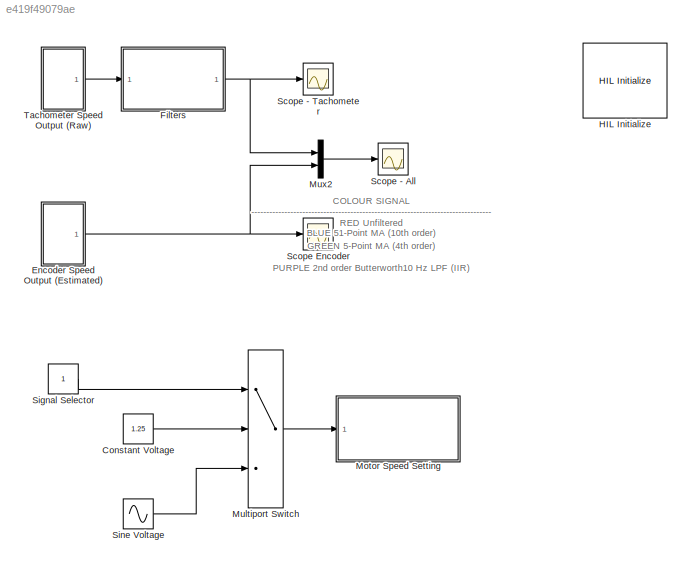
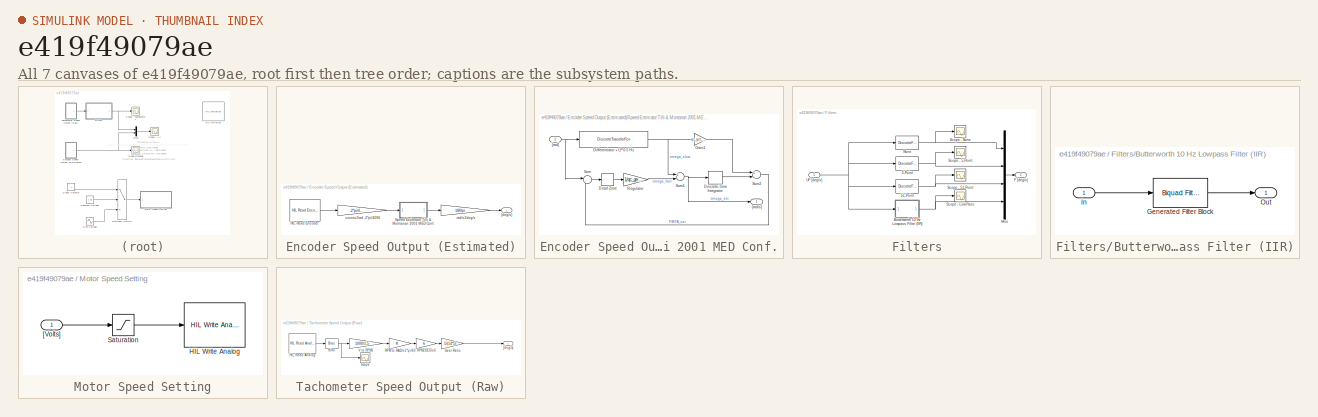
[diagram: thumbnail index - all 7 canvases of the model, root first then tree order]
MODEL slx_e419f49079ae
KIND model
CONFIG AbsTol = auto
CONFIG FixedStep = 0.005
CONFIG MaxStep = auto
CONFIG MinStep = auto
CONFIG RelTol = 1e-3
CONFIG SampleTimeConstraint = Unconstrained
CONFIG Solver = FixedStepDiscrete
CONFIG SolverMode = Auto
CONFIG SolverName = FixedStepDiscrete
CONFIG StartTime = 0.0
CONFIG StopTime = inf
BLOCK [Constant] Constant Voltage
  Value = 1.25
BLOCK [SubSystem] Encoder Speed Output (Estimated)
  Ports = [0, 1]
  RequestExecContextInheritance = off
  Variant = off
BLOCK [Reference] Encoder Speed Output (Estimated)/HIL Read Encoder  REF=quarc_library/Data Acquisition/Generic/Immediate I//O/HIL Read Encoder
  AttributesFormatString = (%<object_name>)
  Ports = [0, 1]
  SourceBlock = quarc_library/Data Acquisition/Generic/Immediate I//O/HIL Read Encoder
  SourceType = HIL Read Encoder
  UserDataPersistent = on
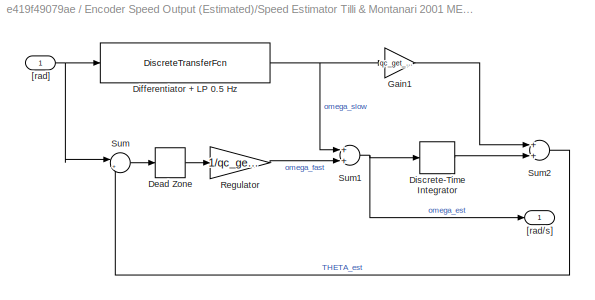
BLOCK [SubSystem] Encoder Speed Output (Estimated)/Speed Estimator Tilli & Montanari 2001 MED Conf.
  Ports = [1, 1]
  RequestExecContextInheritance = off
  Variant = off
BLOCK [DeadZone] Encoder Speed Output (Estimated)/Speed Estimator Tilli & Montanari 2001 MED Conf./Dead Zone
  LowerValue = -2*pi/4096
  UpperValue = 2*pi/4096
BLOCK [DiscreteTransferFcn] Encoder Speed Output (Estimated)/Speed Estimator Tilli & Montanari 2001 MED Conf./Differentiator + LP 0.5 Hz
  Denominator = [(400*qc_get_step_size+qc_get_step_size/2) (400*qc_get_step_size-qc_get_step_size/2)]
  InputPortMap = u0
  Numerator = [1 -1]
  Ports = [1, 1]
BLOCK [DiscreteIntegrator] Encoder Speed Output (Estimated)/Speed Estimator Tilli & Montanari 2001 MED Conf./Discrete-Time Integrator
  ICPrevOutput = DiscIntNeverNeededParam
  ICPrevScaledInput = DiscIntNeverNeededParam
  Ports = [1, 1]
  SampleTime = -1
BLOCK [Gain] Encoder Speed Output (Estimated)/Speed Estimator Tilli & Montanari 2001 MED Conf./Gain1
  Gain = qc_get_step_size/2
  OutDataTypeStr = Inherit: Inherit via internal rule
  ParamDataTypeStr = Inherit: Inherit via internal rule
  SaturateOnIntegerOverflow = off
BLOCK [Gain] Encoder Speed Output (Estimated)/Speed Estimator Tilli & Montanari 2001 MED Conf./Regulator
  Gain = 1/qc_get_step_size/40*2*pi
  OutDataTypeStr = Inherit: Inherit via internal rule
  ParamDataTypeStr = Inherit: Inherit via internal rule
  SaturateOnIntegerOverflow = off
BLOCK [Sum] Encoder Speed Output (Estimated)/Speed Estimator Tilli & Montanari 2001 MED Conf./Sum
  IconShape = round
  InputSameDT = off
  Inputs = |+-
  OutDataTypeStr = Inherit: Inherit via internal rule
  Ports = [2, 1]
  SaturateOnIntegerOverflow = off
BLOCK [Sum] Encoder Speed Output (Estimated)/Speed Estimator Tilli & Montanari 2001 MED Conf./Sum1
  InputSameDT = off
  OutDataTypeStr = Inherit: Inherit via internal rule
  Ports = [2, 1]
  SaturateOnIntegerOverflow = off
BLOCK [Sum] Encoder Speed Output (Estimated)/Speed Estimator Tilli & Montanari 2001 MED Conf./Sum2
  InputSameDT = off
  OutDataTypeStr = Inherit: Inherit via internal rule
  Ports = [2, 1]
  SaturateOnIntegerOverflow = off
BLOCK [Outport] Encoder Speed Output (Estimated)/Speed Estimator Tilli & Montanari 2001 MED Conf./[rad//s]
  IconDisplay = Port number
BLOCK [Inport] Encoder Speed Output (Estimated)/Speed Estimator Tilli & Montanari 2001 MED Conf./[rad]
  IconDisplay = Port number
BLOCK [Outport] Encoder Speed Output (Estimated)/[deg//s]
  IconDisplay = Port number
BLOCK [Gain] Encoder Speed Output (Estimated)/counts2rad -2*pi//4096
  Gain = -2*pi/4096
  OutDataTypeStr = Inherit: Inherit via internal rule
  ParamDataTypeStr = Inherit: Inherit via internal rule
  SaturateOnIntegerOverflow = off
BLOCK [Gain] Encoder Speed Output (Estimated)/rad//s2deg//s
  Gain = 180/pi
  OutDataTypeStr = Inherit: Inherit via internal rule
  ParamDataTypeStr = Inherit: Inherit via internal rule
  SaturateOnIntegerOverflow = off
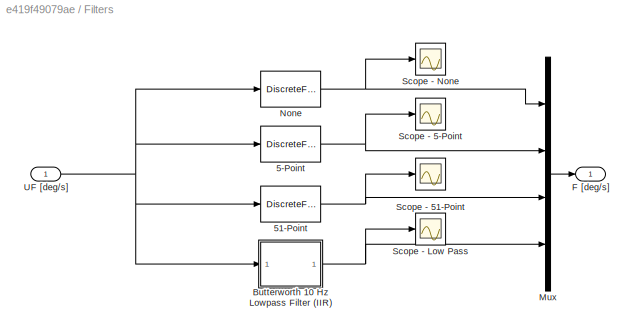
BLOCK [SubSystem] Filters
  Ports = [1, 1]
  RequestExecContextInheritance = off
  Variant = off
BLOCK [DiscreteFilter] Filters/5-Point
  Denominator = [1]
  InputPortMap = u0
  Numerator = 1/5*ones(1,5,'double')
  Ports = [1, 1]
BLOCK [DiscreteFilter] Filters/51-Point
  Denominator = [1]
  InputPortMap = u0
  Numerator = 1/51*ones(1,51,'double')
  Ports = [1, 1]
BLOCK [SubSystem] Filters/Butterworth 10 Hz Lowpass Filter (IIR)
  CopyFcn = fdesignblkfcn(gcbh, {'CopyFcn'});
  DialogController = fdesignblkfcn
  InitFcn = fdesignblkfcn(gcbh, {'InitFcn'});
  Ports = [1, 1]
  RequestExecContextInheritance = off
  UserDataPersistent = on
  Variant = off
BLOCK [Reference] Filters/Butterworth 10 Hz Lowpass Filter (IIR)/Generated Filter Block  REF=dsparch4/Biquad Filter
  Ports = [1, 1]
  SourceBlock = dsparch4/Biquad Filter
  SourceType = Biquad Filter
  Tag = BlockMethodSubSystem
  UserDataPersistent = on
BLOCK [Inport] Filters/Butterworth 10 Hz Lowpass Filter (IIR)/In
  IconDisplay = Port number
BLOCK [Outport] Filters/Butterworth 10 Hz Lowpass Filter (IIR)/Out
  IconDisplay = Port number
BLOCK [Outport] Filters/F [deg//s]
  IconDisplay = Port number
BLOCK [Mux] Filters/Mux
  DisplayOption = bar
  Ports = [4, 1]
BLOCK [DiscreteFilter] Filters/None
  Denominator = [1]
  InputPortMap = u0
  Ports = [1, 1]
BLOCK [Scope] Filters/Scope - 5-Point
  Ports = [1]
  ScopeSpecificationString = C++SS(StrPVP('Location','[188, 390, 512, 629]'),StrPVP('Open','off'),MxPVP('AxesTitles',24,'struct(''axes1'',''%<SignalLabel>'')'),MxPVP('ScopeGraphics',28,'struct(''FigureColor'',''[0.5 0.5 0.5]'',''AxesColor'',''[0 0 0]'',''AxesTickColor'',''[1 1 1]'',''LineColors'',''[1 1 0;1 0 1;0 1 1;1 0 0;0 1 0;0 0 1]'',''LineStyles'',''-|-|-|-|-|-'',''LineWidths'',''[0.5 0.5 0.5 0.5 0.5 0.5]'',''MarkerStyle...<+313ch>
BLOCK [Scope] Filters/Scope - 51-Point
  Ports = [1]
  ScopeSpecificationString = C++SS(StrPVP('Location','[188, 390, 727, 726]'),StrPVP('Open','off'),MxPVP('AxesTitles',24,'struct(''axes1'',''%<SignalLabel>'')'),MxPVP('ScopeGraphics',28,'struct(''FigureColor'',''[0.5 0.5 0.5]'',''AxesColor'',''[0 0 0]'',''AxesTickColor'',''[1 1 1]'',''LineColors'',''[1 1 0;1 0 1;0 1 1;1 0 0;0 1 0;0 0 1]'',''LineStyles'',''-|-|-|-|-|-'',''LineWidths'',''[0.5 0.5 0.5 0.5 0.5 0.5]'',''MarkerStyle...<+318ch>
BLOCK [Scope] Filters/Scope - Low Pass
  Ports = [1]
  ScopeSpecificationString = C++SS(StrPVP('Location','[188, 390, 512, 629]'),StrPVP('Open','off'),MxPVP('AxesTitles',24,'struct(''axes1'',''%<SignalLabel>'')'),MxPVP('ScopeGraphics',28,'struct(''FigureColor'',''[0.5 0.5 0.5]'',''AxesColor'',''[0 0 0]'',''AxesTickColor'',''[1 1 1]'',''LineColors'',''[1 1 0;1 0 1;0 1 1;1 0 0;0 1 0;0 0 1]'',''LineStyles'',''-|-|-|-|-|-'',''LineWidths'',''[0.5 0.5 0.5 0.5 0.5 0.5]'',''MarkerStyle...<+315ch>
BLOCK [Scope] Filters/Scope - None
  Ports = [1]
  ScopeSpecificationString = C++SS(StrPVP('Location','[188, 390, 512, 629]'),StrPVP('Open','off'),MxPVP('AxesTitles',24,'struct(''axes1'',''%<SignalLabel>'')'),StrPVP('ShowLegends','off'),StrPVP('YMin','93'),StrPVP('YMax','98.5'),StrPVP('SaveName','ScopeData2'),StrPVP('DataFormat','StructureWithTime'),StrPVP('BlockParamSampleTime','0'),StrPVP('LimitDataPoints','on'),StrPVP('Decimation','1'),StrPVP('BlockParamSampleInput','off...<+3ch>
BLOCK [Inport] Filters/UF [deg//s]
  IconDisplay = Port number
BLOCK [Reference] HIL Initialize  REF=quarc_library/Data Acquisition/Generic/Configuration/HIL Initialize
  AttributesFormatString = %<object_name> (%<board_type>-%<board_number>)
  Ports = []
  SourceBlock = quarc_library/Data Acquisition/Generic/Configuration/HIL Initialize
  SourceType = HIL Initialize
  UserDataPersistent = on
BLOCK [SubSystem] Motor Speed Setting
  Ports = [1]
  RequestExecContextInheritance = off
  Variant = off
BLOCK [Reference] Motor Speed Setting/HIL Write Analog  REF=quarc_library/Data Acquisition/Generic/Immediate I//O/HIL Write Analog
  AttributesFormatString = (%<object_name>)
  Ports = [1]
  SourceBlock = quarc_library/Data Acquisition/Generic/Immediate I//O/HIL Write Analog
  SourceType = HIL Write Analog
  UserDataPersistent = on
BLOCK [Saturate] Motor Speed Setting/Saturation
  InputPortMap = u0
  LowerLimit = -3
  Ports = [1, 1]
  UpperLimit = 3
BLOCK [Inport] Motor Speed Setting/[Volts]
  IconDisplay = Port number
BLOCK [MultiPortSwitch] Multiport Switch
  InputSameDT = off
  Inputs = 2
  Ports = [3, 1]
  SaturateOnIntegerOverflow = off
BLOCK [Mux] Mux2
  DisplayOption = bar
  Inputs = 2
  Ports = [2, 1]
BLOCK [Scope] Scope - All 
  Ports = [1]
  ScopeSpecificationString = Simulink.scopes.TimeScopeBlockCfg('CurrentConfiguration', extmgr.ConfigurationSet(extmgr.Configuration('Core','General UI',true,'FigureColor',[1 1 1]),extmgr.Configuration('Core','Source UI',true),extmgr.Configuration('Sources','WiredSimulink',true,'DataLoggingVariableName','ScopeData1','DataLoggingSaveFormat','StructureWithTime','DataLoggingDecimation','1','DataLoggingDecimateData',true),extmgr.C...<+2302ch>
BLOCK [Scope] Scope - Tachometer
  Ports = [1]
  ScopeSpecificationString = Simulink.scopes.TimeScopeBlockCfg('CurrentConfiguration', extmgr.ConfigurationSet(extmgr.Configuration('Core','General UI',true,'FigureColor',[1 1 1]),extmgr.Configuration('Core','Source UI',true),extmgr.Configuration('Sources','WiredSimulink',true,'DataLoggingSaveFormat','StructureWithTime','DataLoggingDecimation','1','DataLoggingDecimateData',true),extmgr.Configuration('Visuals','Time Domain',tr...<+2273ch>
BLOCK [Scope] Scope Encoder
  Ports = [1]
  ScopeSpecificationString = Simulink.scopes.TimeScopeBlockCfg('CurrentConfiguration', extmgr.ConfigurationSet(extmgr.Configuration('Core','General UI',true,'FigureColor',[1 1 1]),extmgr.Configuration('Core','Source UI',true),extmgr.Configuration('Sources','WiredSimulink',true,'DataLoggingVariableName','ScopeData5','DataLoggingSaveFormat','StructureWithTime','DataLoggingDecimation','1','DataLoggingDecimateData',true),extmgr.C...<+2593ch>
BLOCK [Constant] Signal Selector
BLOCK [Sin] Sine Voltage
  Amplitude = .25
  Bias = 1
  Frequency = 2*pi
  Ports = [0, 1]
  SampleTime = qc_get_step_size
BLOCK [SubSystem] Tachometer Speed Output (Raw)
  Ports = [0, 1]
  RequestExecContextInheritance = off
  Variant = off
BLOCK [Bias] Tachometer Speed Output (Raw)/Bias
  SaturateOnIntegerOverflow = off
BLOCK [Gain] Tachometer Speed Output (Raw)/Gear Ratio
  Gain = 1/(14*5)
  OutDataTypeStr = Inherit: Inherit via internal rule
  ParamDataTypeStr = Inherit: Inherit via internal rule
  SaturateOnIntegerOverflow = off
BLOCK [Reference] Tachometer Speed Output (Raw)/HIL Read Analog  REF=quarc_library/Data Acquisition/Generic/Immediate I//O/HIL Read Analog
  AttributesFormatString = (%<object_name>)
  Ports = [0, 1]
  SourceBlock = quarc_library/Data Acquisition/Generic/Immediate I//O/HIL Read Analog
  SourceType = HIL Read Analog
  UserDataPersistent = on
BLOCK [Gain] Tachometer Speed Output (Raw)/RPM to RAD//s 2*pi//60
  OutDataTypeStr = Inherit: Inherit via internal rule
  ParamDataTypeStr = Inherit: Inherit via internal rule
  SaturateOnIntegerOverflow = off
BLOCK [Gain] Tachometer Speed Output (Raw)/RPM2DEG//s 6
  Gain = 6
  OutDataTypeStr = Inherit: Inherit via internal rule
  ParamDataTypeStr = Inherit: Inherit via internal rule
  SaturateOnIntegerOverflow = off
BLOCK [Scope] Tachometer Speed Output (Raw)/Scope
  Ports = [1]
  ScopeSpecificationString = C++SS(StrPVP('Location','[188, 390, 512, 629]'),StrPVP('Open','off'),MxPVP('AxesTitles',24,'struct(''axes1'',''%<SignalLabel>'')'),MxPVP('ScopeGraphics',28,'struct(''FigureColor'',''[0.5 0.5 0.5]'',''AxesColor'',''[0 0 0]'',''AxesTickColor'',''[1 1 1]'',''LineColors'',''[1 1 0;1 0 1;0 1 1;1 0 0;0 1 0;0 0 1]'',''LineStyles'',''-|-|-|-|-|-'',''LineWidths'',''[0.5 0.5 0.5 0.5 0.5 0.5]'',''MarkerStyle...<+391ch>
BLOCK [Gain] Tachometer Speed Output (Raw)/V to RPM1
  Gain = 1000/1.5
  OutDataTypeStr = Inherit: Inherit via internal rule
  ParamDataTypeStr = Inherit: Inherit via internal rule
  SaturateOnIntegerOverflow = off
BLOCK [Outport] Tachometer Speed Output (Raw)/[deg//s]
  IconDisplay = Port number
ANNOTATION (root): COLOUR SIGNAL -------------------------------------------------------------------------------- RED Unfiltered GREEN 5-Point MA (4th order) BLUE 51-Point MA (10th order) PURPLE 2nd order Butterworth10 Hz LPF (IIR) ORANGE Encoder Estimated
LINE Constant Voltage:1 -> Multiport Switch:2
LINE Encoder Speed Output (Estimated)/HIL Read Encoder:1 -> Encoder Speed Output (Estimated)/counts2rad -2*pi//4096:1
LINE Encoder Speed Output (Estimated)/Speed Estimator Tilli & Montanari 2001 MED Conf./Dead Zone:1 -> Encoder Speed Output (Estimated)/Speed Estimator Tilli & Montanari 2001 MED Conf./Regulator:1
NET Encoder Speed Output (Estimated)/Speed Estimator Tilli & Montanari 2001 MED Conf./Differentiator + LP 0.5 Hz:1 -> Encoder Speed Output (Estimated)/Speed Estimator Tilli & Montanari 2001 MED Conf./Gain1:1, Encoder Speed Output (Estimated)/Speed Estimator Tilli & Montanari 2001 MED Conf./Sum1:1
LINE Encoder Speed Output (Estimated)/Speed Estimator Tilli & Montanari 2001 MED Conf./Discrete-Time Integrator:1 -> Encoder Speed Output (Estimated)/Speed Estimator Tilli & Montanari 2001 MED Conf./Sum2:2
LINE Encoder Speed Output (Estimated)/Speed Estimator Tilli & Montanari 2001 MED Conf./Gain1:1 -> Encoder Speed Output (Estimated)/Speed Estimator Tilli & Montanari 2001 MED Conf./Sum2:1
LINE Encoder Speed Output (Estimated)/Speed Estimator Tilli & Montanari 2001 MED Conf./Regulator:1 -> Encoder Speed Output (Estimated)/Speed Estimator Tilli & Montanari 2001 MED Conf./Sum1:2
NET Encoder Speed Output (Estimated)/Speed Estimator Tilli & Montanari 2001 MED Conf./Sum1:1 -> Encoder Speed Output (Estimated)/Speed Estimator Tilli & Montanari 2001 MED Conf./Discrete-Time Integrator:1, Encoder Speed Output (Estimated)/Speed Estimator Tilli & Montanari 2001 MED Conf./[rad//s]:1
LINE Encoder Speed Output (Estimated)/Speed Estimator Tilli & Montanari 2001 MED Conf./Sum2:1 -> Encoder Speed Output (Estimated)/Speed Estimator Tilli & Montanari 2001 MED Conf./Sum:2
LINE Encoder Speed Output (Estimated)/Speed Estimator Tilli & Montanari 2001 MED Conf./Sum:1 -> Encoder Speed Output (Estimated)/Speed Estimator Tilli & Montanari 2001 MED Conf./Dead Zone:1
NET Encoder Speed Output (Estimated)/Speed Estimator Tilli & Montanari 2001 MED Conf./[rad]:1 -> Encoder Speed Output (Estimated)/Speed Estimator Tilli & Montanari 2001 MED Conf./Differentiator + LP 0.5 Hz:1, Encoder Speed Output (Estimated)/Speed Estimator Tilli & Montanari 2001 MED Conf./Sum:1
LINE Encoder Speed Output (Estimated)/Speed Estimator Tilli & Montanari 2001 MED Conf.:1 -> Encoder Speed Output (Estimated)/rad//s2deg//s:1
LINE Encoder Speed Output (Estimated)/counts2rad -2*pi//4096:1 -> Encoder Speed Output (Estimated)/Speed Estimator Tilli & Montanari 2001 MED Conf.:1
LINE Encoder Speed Output (Estimated)/rad//s2deg//s:1 -> Encoder Speed Output (Estimated)/[deg//s]:1
NET Encoder Speed Output (Estimated):1 -> Mux2:2, Scope Encoder:1
NET Filters/5-Point:1 -> Filters/Mux:2, Filters/Scope - 5-Point:1
NET Filters/51-Point:1 -> Filters/Mux:3, Filters/Scope - 51-Point:1
NET Filters/Butterworth 10 Hz Lowpass Filter (IIR):1 -> Filters/Mux:4, Filters/Scope - Low Pass:1
LINE Filters/Mux:1 -> Filters/F [deg//s]:1
NET Filters/None:1 -> Filters/Mux:1, Filters/Scope - None:1
NET Filters/UF [deg//s]:1 -> Filters/5-Point:1, Filters/51-Point:1, Filters/Butterworth 10 Hz Lowpass Filter (IIR):1, Filters/None:1
NET Filters:1 -> Mux2:1, Scope - Tachometer:1
LINE Motor Speed Setting/Saturation:1 -> Motor Speed Setting/HIL Write Analog:1
LINE Motor Speed Setting/[Volts]:1 -> Motor Speed Setting/Saturation:1
LINE Multiport Switch:1 -> Motor Speed Setting:1
LINE Mux2:1 -> Scope - All :1
LINE Signal Selector:1 -> Multiport Switch:1
LINE Sine Voltage:1 -> Multiport Switch:3
NET Tachometer Speed Output (Raw)/Bias:1 -> Tachometer Speed Output (Raw)/Scope:1, Tachometer Speed Output (Raw)/V to RPM1:1
LINE Tachometer Speed Output (Raw)/Gear Ratio:1 -> Tachometer Speed Output (Raw)/[deg//s]:1
LINE Tachometer Speed Output (Raw)/HIL Read Analog:1 -> Tachometer Speed Output (Raw)/Bias:1
LINE Tachometer Speed Output (Raw)/RPM to RAD//s 2*pi//60:1 -> Tachometer Speed Output (Raw)/RPM2DEG//s 6:1
LINE Tachometer Speed Output (Raw)/RPM2DEG//s 6:1 -> Tachometer Speed Output (Raw)/Gear Ratio:1
LINE Tachometer Speed Output (Raw)/V to RPM1:1 -> Tachometer Speed Output (Raw)/RPM to RAD//s 2*pi//60:1
LINE Tachometer Speed Output (Raw):1 -> Filters:1
note: NET lines group one-source signal fan-out (src -> all destinations, sorted); 1:1 wires keep LINE
